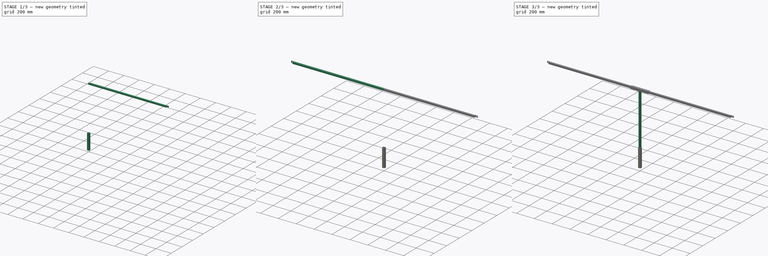
[diagram: build sequence overview — one tinted view per stage of 3, left to right]
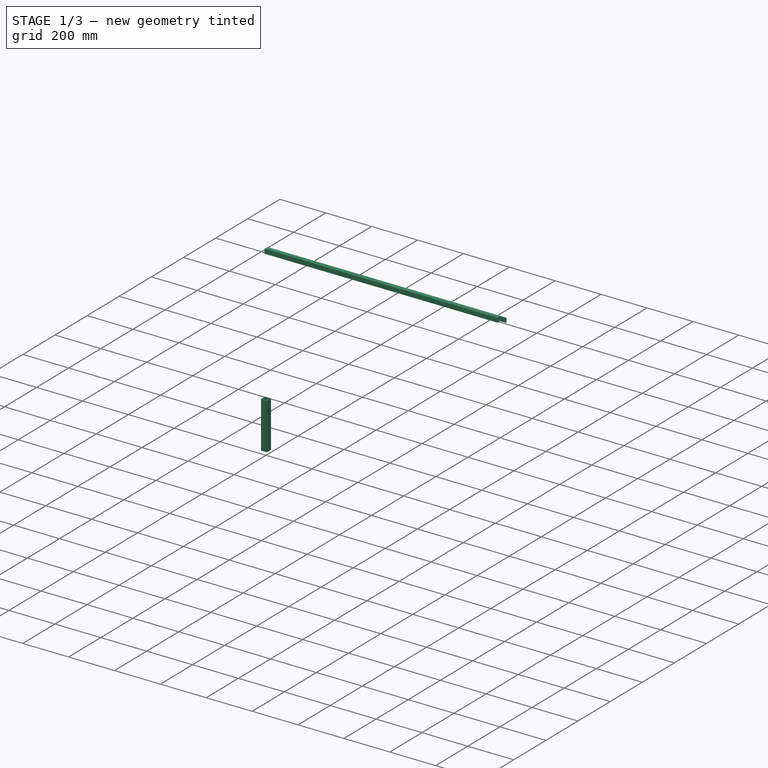
[diagram: stage 1 of 3 — iso view after this stage's code; geometry added in this stage tinted green]
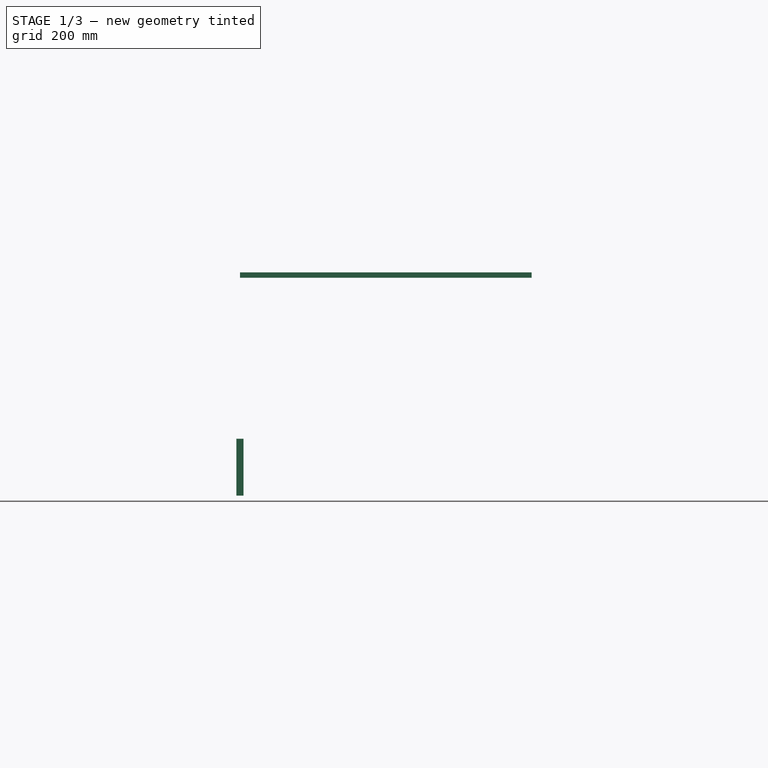
[diagram: stage 1 of 3 — front view after this stage's code; geometry added in this stage tinted green]
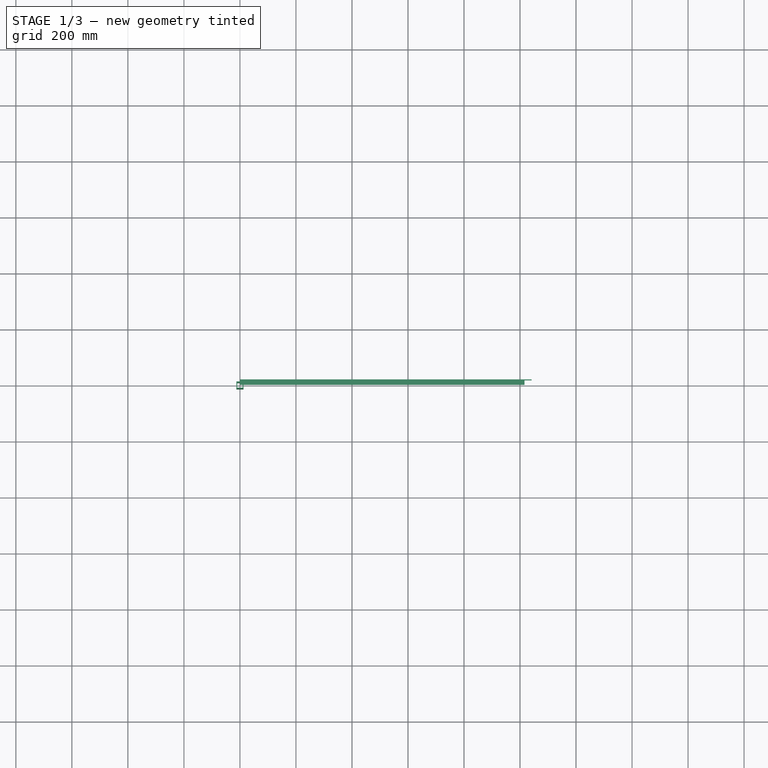
[diagram: stage 1 of 3 — top view after this stage's code; geometry added in this stage tinted green]
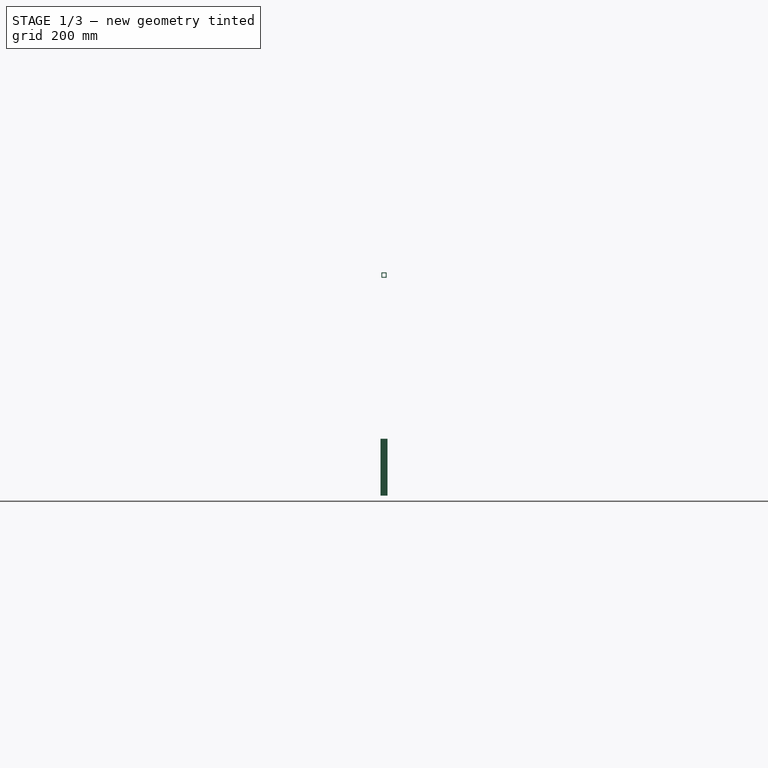
[diagram: stage 1 of 3 — right view after this stage's code; geometry added in this stage tinted green]
FCSTD DOCUMENT  (FreeCAD 0.19R21120 (Git))
Label: Brace
License: All rights reserved
LicenseURL: http://en.wikipedia.org/wiki/All_rights_reserved
objects: Sketcher::SketchObject×8, PartDesign::Pad×4, PartDesign::Pocket×3, PartDesign::Body×3, App::Part×2, PartDesign::Mirrored×1, PartDesign::CoordinateSystem×1
note: 27 computed .brp shape members not serialized (recipe doc carries the construction recipe); baked Part::Feature solids carry a one-line shape summary decoded from their .brp

FEATURE [Sketcher::SketchObject] Sketch
  MapMode = 5
  Placement = pos=(0,0,0) rot=(0.57735,0.57735,0.57735;2.0944rad)
  Support = -> [YZ_Plane]
  sketch-geometry (8):
    g0: LineSegment StartX=-6.35 StartY=692.15 StartZ=0 EndX=6.35 EndY=692.15 EndZ=0
    g1: LineSegment StartX=6.35 StartY=692.15 StartZ=0 EndX=6.35 EndY=679.45 EndZ=0
    g2: LineSegment StartX=6.35 StartY=679.45 StartZ=0 EndX=-6.35 EndY=679.45 EndZ=0
    g3: LineSegment StartX=-6.35 StartY=679.45 StartZ=0 EndX=-6.35 EndY=692.15 EndZ=0
    g4: LineSegment StartX=-9.525 StartY=695.325 StartZ=0 EndX=9.525 EndY=695.325 EndZ=0
    g5: LineSegment StartX=9.525 StartY=695.325 StartZ=0 EndX=9.525 EndY=676.275 EndZ=0
    g6: LineSegment StartX=9.525 StartY=676.275 StartZ=0 EndX=-9.525 EndY=676.275 EndZ=0
    g7: LineSegment StartX=-9.525 StartY=676.275 StartZ=0 EndX=-9.525 EndY=695.325 EndZ=0
  constraints (23):
    c: Coincident(g0,g1)
    c: Coincident(g1,g2)
    c: Coincident(g2,g3)
    c: Coincident(g3,g0)
    c: Horizontal(g0)
    c: Horizontal(g2)
    c: Vertical(g1)
    c: Vertical(g3)
    c: Coincident(g4,g5)
    c: Coincident(g5,g6)
    c: Coincident(g6,g7)
    c: Coincident(g7,g4)
    c: Horizontal(g6)
    c: Vertical(g5)
    c: Vertical(g7)
    c: Symmetric(g4,g4,g-2)
    c: Equal(g4,g7)
    c: DistanceX(g2,g6) = -3.175
    c: DistanceY(g2,g6) = -3.175
    c: Equal(g3,g2)
    c: DistanceX(g0,g4) = 3.175
    c: DistanceX(g6,g6) = 19.05
    c: DistanceY(g5) = 676.275
FEATURE [PartDesign::Pad] Pad
  Length = 1041.4
  Length2 = 98.425
  Placement = pos=(0,0,0) rot=(0.57735,0.57735,0.57735;2.0944rad)
  Profile = -> Sketch
  Type = 0
FEATURE [Sketcher::SketchObject] Sketch001
  ExternalGeometry = -> [Pad]
  MapMode = 5
  Placement = pos=(-2.702e-13,3.86e-13,695.325) rot=(0,0,-1;1.5708rad)
  Support = -> [Pad]
  sketch-geometry (4):
    g0: LineSegment StartX=-6.35 StartY=1041.4 StartZ=0 EndX=9.525 EndY=1041.4 EndZ=0
    g1: LineSegment StartX=9.525 StartY=1041.4 StartZ=0 EndX=9.525 EndY=1016 EndZ=0
    g2: LineSegment StartX=9.525 StartY=1016 StartZ=0 EndX=-6.35 EndY=1016 EndZ=0
    g3: LineSegment StartX=-6.35 StartY=1016 StartZ=0 EndX=-6.35 EndY=1041.4 EndZ=0
  constraints (11):
    c: Coincident(g0,g1)
    c: Coincident(g1,g2)
    c: Coincident(g2,g3)
    c: Coincident(g3,g0)
    c: Horizontal(g0)
    c: Horizontal(g2)
    c: Vertical(g1)
    c: Vertical(g3)
    c: DistanceX(g-3,g0) = 3.175
    c: DistanceY(g3,g3) = 25.4
    c: Coincident(g0,g-3)
FEATURE [PartDesign::Pocket] Pocket
  BaseFeature = -> Pad
  Length = 6.35
  Length2 = 98.425
  Placement = pos=(0,0,0) rot=(0.57735,0.57735,0.57735;2.0944rad)
  Profile = -> Sketch001
  Type = 1
FEATURE [PartDesign::Body] Body001  label="Carriage"
  Group = -> [Sketch003,Pad001,Sketch004,Pad002,Sketch005,Pocket002]
  Origin = -> Origin001
  Tip = -> Pocket002
FEATURE [PartDesign::CoordinateSystem] Bolt1
  AttacherType = Attacher::AttachEngine3D
  MapMode = 11
  Placement = pos=(-1028.7,6.35,685.8) rot=(0,0.707107,0.707107;3.14159rad)
  Support = -> [Mirrored]
FEATURE [App::Part] Part  label="Frame"
  Group = -> [Body,Body001,Bolt1]
  Origin = -> Origin002
FEATURE [Sketcher::SketchObject] Sketch006
  MapMode = 5
  Support = -> [XY_Plane004]
  sketch-geometry (8):
    g0: LineSegment StartX=-12.7 StartY=12.7 StartZ=0 EndX=12.7 EndY=12.7 EndZ=0
    g1: LineSegment StartX=12.7 StartY=12.7 StartZ=0 EndX=12.7 EndY=-12.7 EndZ=0
    g2: LineSegment StartX=12.7 StartY=-12.7 StartZ=0 EndX=-12.7 EndY=-12.7 EndZ=0
    g3: LineSegment StartX=-12.7 StartY=-12.7 StartZ=0 EndX=-12.7 EndY=12.7 EndZ=0
    g4: LineSegment StartX=-9.41787 StartY=9.41787 StartZ=0 EndX=9.41787 EndY=9.41787 EndZ=0
    g5: LineSegment StartX=9.41787 StartY=9.41787 StartZ=0 EndX=9.41787 EndY=-9.41787 EndZ=0
    g6: LineSegment StartX=9.41787 StartY=-9.41787 StartZ=0 EndX=-9.41787 EndY=-9.41787 EndZ=0
    g7: LineSegment StartX=-9.41787 StartY=-9.41787 StartZ=0 EndX=-9.41787 EndY=9.41787 EndZ=0
  constraints (22):
    c: Coincident(g0,g1)
    c: Coincident(g1,g2)
    c: Coincident(g2,g3)
    c: Coincident(g3,g0)
    c: Horizontal(g0)
    c: Horizontal(g2)
    c: Vertical(g1)
    c: Vertical(g3)
    c: Coincident(g4,g5)
    c: Coincident(g5,g6)
    c: Coincident(g6,g7)
    c: Coincident(g7,g4)
    c: Horizontal(g4)
    c: Horizontal(g6)
    c: Vertical(g5)
    c: Vertical(g7)
    c: Symmetric(g4,g6,g-1)
    c: Symmetric(g0,g2,g-1)
    c: Equal(g0,g3)
    c: Equal(g4,g7)
    c: DistanceX(g6,g2) = -3.28213
    c: DistanceX(g0,g0) = 25.4
FEATURE [PartDesign::Pad] Pad003
  Length = 203.2
  Length2 = 98.425
  Midplane = true
  Profile = -> Sketch006
  Type = 0
FEATURE [Sketcher::SketchObject] Sketch007
  MapMode = 5
  Placement = pos=(0,0,0) rot=(0.57735,0.57735,0.57735;2.0944rad)
  Support = -> [YZ_Plane004]
  sketch-geometry (5):
    g0: LineSegment StartX=-38.1 StartY=12.7 StartZ=0 EndX=-12.7 EndY=12.7 EndZ=0
    g1: LineSegment StartX=-12.7 StartY=12.7 StartZ=0 EndX=-12.7 EndY=-12.7 EndZ=0
    g2: LineSegment StartX=-12.7 StartY=-12.7 StartZ=0 EndX=-38.1 EndY=-12.7 EndZ=0
    g3: LineSegment StartX=-38.1 StartY=-12.7 StartZ=0 EndX=-38.1 EndY=12.7 EndZ=0
    g4: Circle CenterX=-25.4 CenterY=0 CenterZ=0 NormalX=0 NormalY=0 NormalZ=1 AngleXU=0 Radius=5.74957
  constraints (13):
    c: Coincident(g0,g1)
    c: Coincident(g1,g2)
    c: Coincident(g2,g3)
    c: Coincident(g3,g0)
    c: Horizontal(g0)
    c: Horizontal(g2)
    c: Vertical(g1)
    c: Vertical(g3)
    c: PointOnObject(g4,g-1)
    c: DistanceX(g0,g0) = 25.4
    c: Symmetric(g2,g0,g4)
    c: Equal(g0,g3)
    c: DistanceX(g0,g-1) = 12.7
FEATURE [PartDesign::Body] Body002
  Group = -> [Sketch006,Pad003,Sketch007]
  Origin = -> Origin004
  Tip = -> Pad003
FEATURE [App::Part] Part001
  Group = -> [Body002]
  Origin = -> Origin003
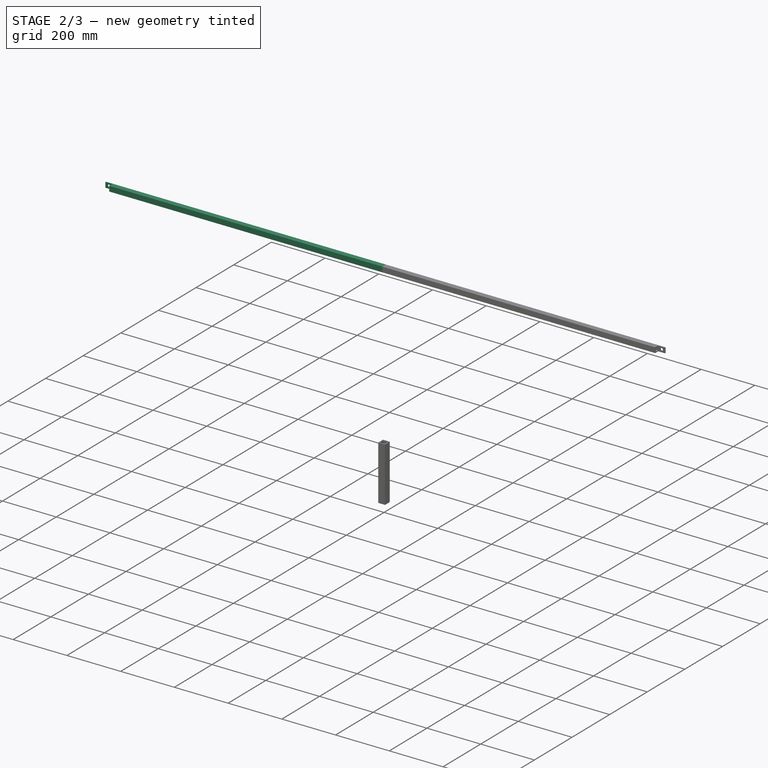
[diagram: stage 2 of 3 — iso view after this stage's code; geometry added in this stage tinted green]
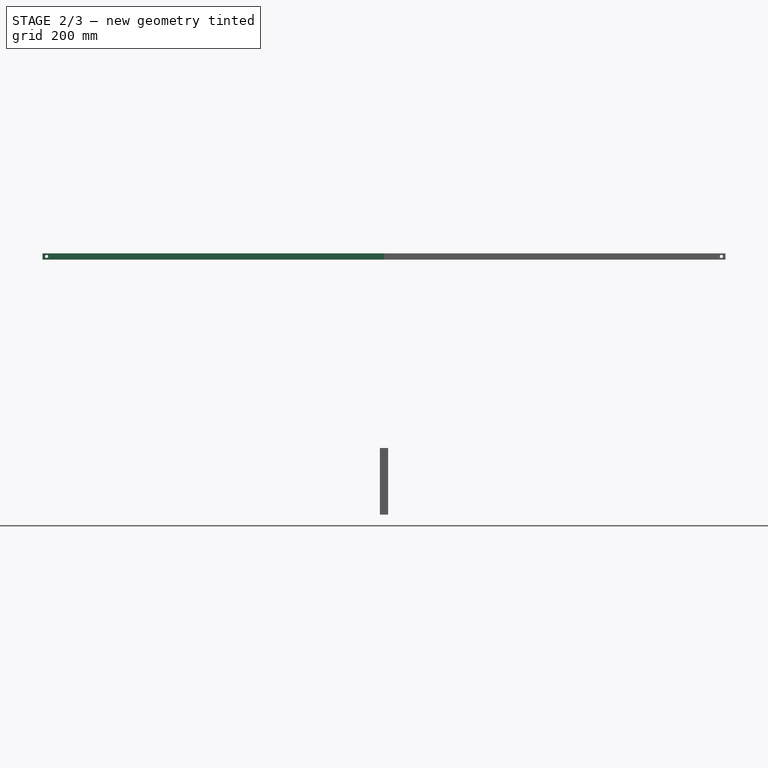
[diagram: stage 2 of 3 — front view after this stage's code; geometry added in this stage tinted green]
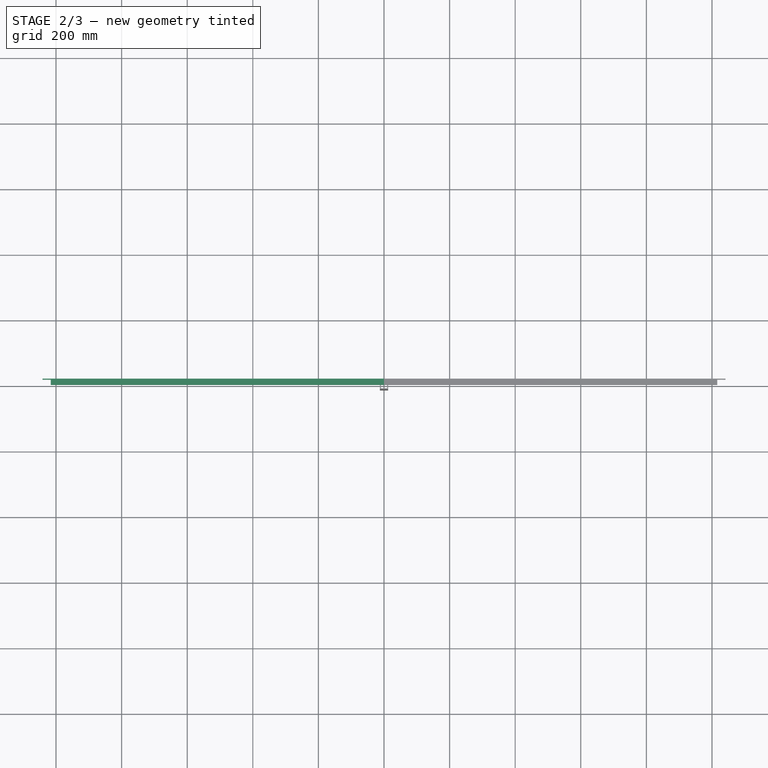
[diagram: stage 2 of 3 — top view after this stage's code; geometry added in this stage tinted green]
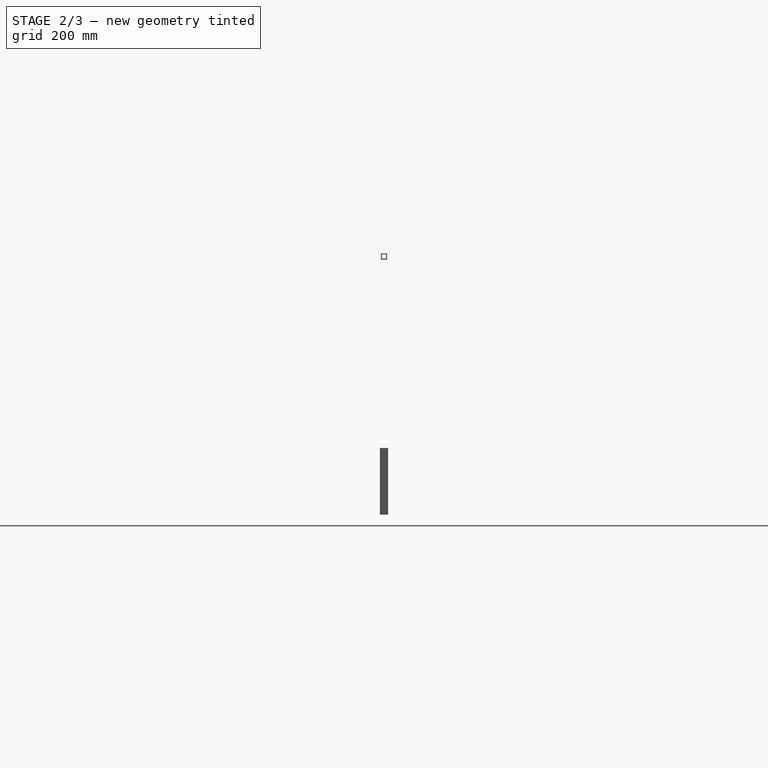
[diagram: stage 2 of 3 — right view after this stage's code; geometry added in this stage tinted green]
FEATURE [Sketcher::SketchObject] Sketch002
  ExternalGeometry = -> [Pocket]
  MapMode = 5
  Placement = pos=(2.8e-15,6.35,-4.2e-15) rot=(0.57735,0.57735,-0.57735;2.0944rad)
  Support = -> [Pocket]
  sketch-geometry (1):
    g0: Circle CenterX=-685.8 CenterY=1028.7 CenterZ=0 NormalX=0 NormalY=0 NormalZ=1 AngleXU=0 Radius=4.7625
  constraints (3):
    c: DistanceX(g0,g-3) = -9.525
    c: Diameter(g0) = 9.525
    c: DistanceY(g0) = 1028.7
FEATURE [PartDesign::Pocket] Pocket001
  BaseFeature = -> Pocket
  Length = 6.35
  Length2 = 98.425
  Placement = pos=(0,0,0) rot=(0.57735,0.57735,0.57735;2.0944rad)
  Profile = -> Sketch002
  Type = 1
FEATURE [PartDesign::Mirrored] Mirrored
  BaseFeature = -> Pocket001
  MirrorPlane = -> Sketch002 [H_Axis]
  Originals = -> [Pad,Pocket,Pocket001]
  Placement = pos=(0,0,0) rot=(0.57735,0.57735,0.57735;2.0944rad)
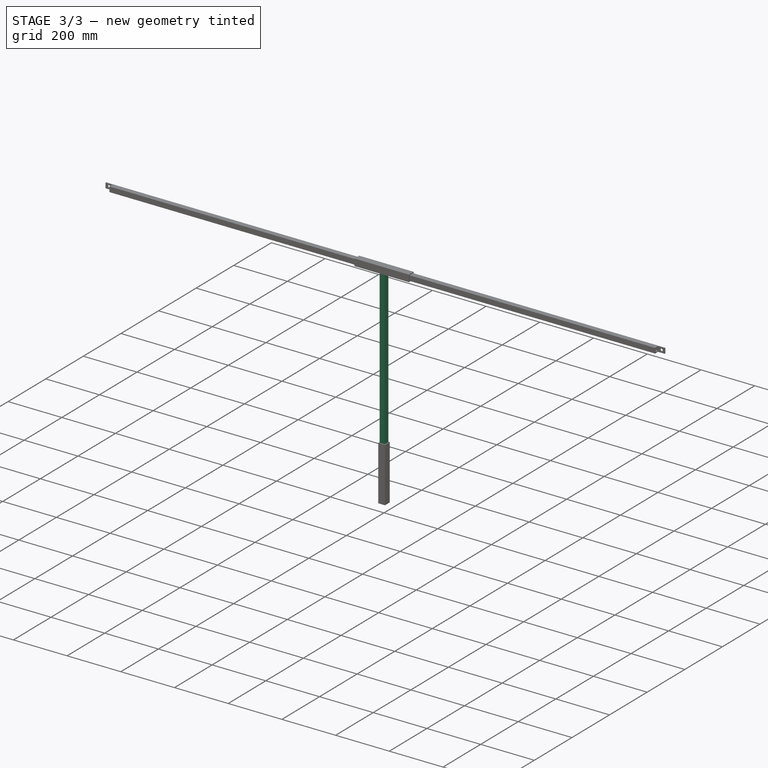
[diagram: stage 3 of 3 — iso view after this stage's code; geometry added in this stage tinted green]
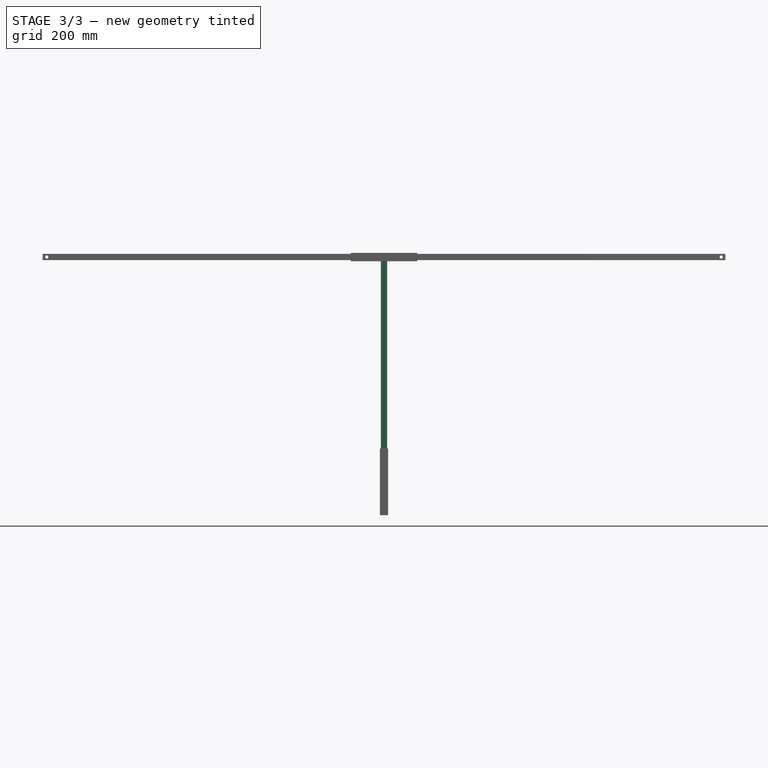
[diagram: stage 3 of 3 — front view after this stage's code; geometry added in this stage tinted green]
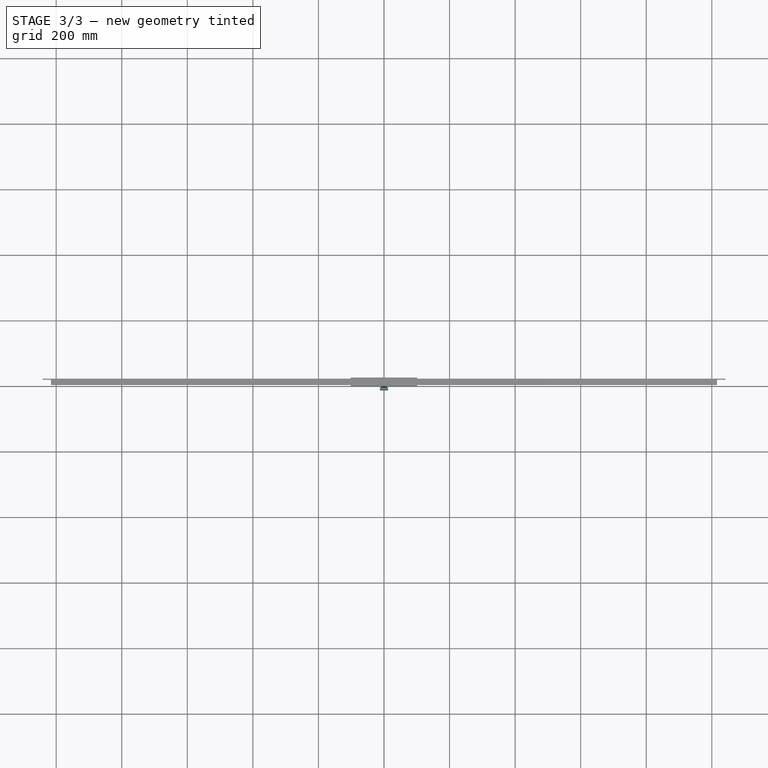
[diagram: stage 3 of 3 — top view after this stage's code; geometry added in this stage tinted green]
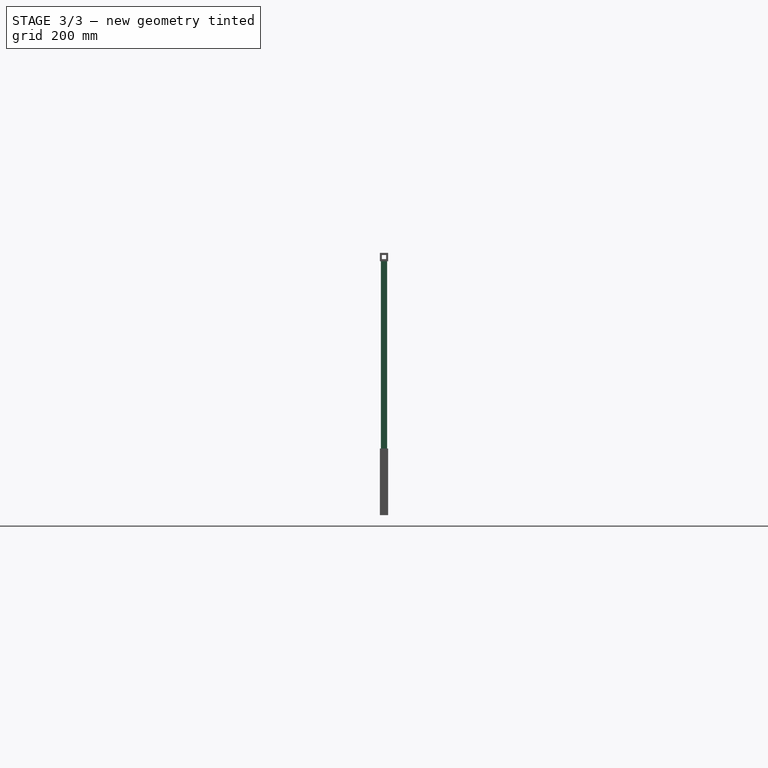
[diagram: stage 3 of 3 — right view after this stage's code; geometry added in this stage tinted green]
FEATURE [PartDesign::Body] Body  label="CrossBeam"
  Group = -> [Sketch,Pad,Sketch001,Pocket,Sketch002,Pocket001,Mirrored]
  Origin = -> Origin
  Tip = -> Mirrored
FEATURE [Sketcher::SketchObject] Sketch003
  MapMode = 5
  Placement = pos=(0,0,0) rot=(0.57735,0.57735,0.57735;2.0944rad)
  Support = -> [YZ_Plane001]
  sketch-geometry (9):
    g0: LineSegment StartX=-9.525 StartY=695.325 StartZ=0 EndX=9.525 EndY=695.325 EndZ=0
    g1: LineSegment StartX=9.525 StartY=695.325 StartZ=0 EndX=9.525 EndY=676.275 EndZ=0
    g2: LineSegment StartX=9.525 StartY=676.275 StartZ=0 EndX=-9.525 EndY=676.275 EndZ=0
    g3: LineSegment StartX=-9.525 StartY=676.275 StartZ=0 EndX=-9.525 EndY=695.325 EndZ=0
    g4: LineSegment StartX=-12.7 StartY=698.5 StartZ=0 EndX=12.7 EndY=698.5 EndZ=0
    g5: LineSegment StartX=12.7 StartY=698.5 StartZ=0 EndX=12.7 EndY=673.1 EndZ=0
    g6: LineSegment StartX=12.7 StartY=673.1 StartZ=0 EndX=-12.7 EndY=673.1 EndZ=0
    g7: LineSegment StartX=-12.7 StartY=673.1 StartZ=0 EndX=-12.7 EndY=698.5 EndZ=0
    g8: LineSegment [constr] StartX=-9.525 StartY=676.275 StartZ=0 EndX=-12.7 EndY=673.1 EndZ=0
  constraints (25):
    c: Coincident(g0,g1)
    c: Coincident(g1,g2)
    c: Coincident(g2,g3)
    c: Coincident(g3,g0)
    c: Horizontal(g0)
    c: Horizontal(g2)
    c: Vertical(g1)
    c: Vertical(g3)
    c: Coincident(g4,g5)
    c: Coincident(g5,g6)
    c: Coincident(g6,g7)
    c: Coincident(g7,g4)
    c: Horizontal(g6)
    c: Vertical(g5)
    c: Vertical(g7)
    c: Equal(g4,g7)
    c: Symmetric(g4,g4,g-2)
    c: DistanceX(g4,g4) = 25.4
    c: DistanceY(g1) = 676.275
    c: Equal(g0,g3)
    c: Coincident(g8,g2)
    c: Coincident(g8,g6)
    c: Angle(g6,g8) = 0.785398
    c: DistanceX(g6,g2) = 3.175
    c: DistanceY(g0,g4) = 3.175
FEATURE [PartDesign::Pad] Pad001
  Length = 203.2
  Length2 = 98.425
  Midplane = true
  Placement = pos=(0,0,0) rot=(0.57735,0.57735,0.57735;2.0944rad)
  Profile = -> Sketch003
  Type = 0
FEATURE [Sketcher::SketchObject] Sketch004
  ExternalGeometry = -> [Pad001]
  MapMode = 5
  Placement = pos=(-2.616e-13,3.736e-13,673.1) rot=(0.707107,0.707107,0;3.14159rad)
  Support = -> [Pad001]
  sketch-geometry (8):
    g0: LineSegment StartX=-9.525 StartY=9.525 StartZ=0 EndX=9.525 EndY=9.525 EndZ=0
    g1: LineSegment StartX=9.525 StartY=9.525 StartZ=0 EndX=9.525 EndY=-9.525 EndZ=0
    g2: LineSegment StartX=9.525 StartY=-9.525 StartZ=0 EndX=-9.525 EndY=-9.525 EndZ=0
    g3: LineSegment StartX=-9.525 StartY=-9.525 StartZ=0 EndX=-9.525 EndY=9.525 EndZ=0
    g4: LineSegment StartX=-6.35 StartY=6.35 StartZ=0 EndX=6.35 EndY=6.35 EndZ=0
    g5: LineSegment StartX=6.35 StartY=6.35 StartZ=0 EndX=6.35 EndY=-6.35 EndZ=0
    g6: LineSegment StartX=6.35 StartY=-6.35 StartZ=0 EndX=-6.35 EndY=-6.35 EndZ=0
    g7: LineSegment StartX=-6.35 StartY=-6.35 StartZ=0 EndX=-6.35 EndY=6.35 EndZ=0
  constraints (22):
    c: Coincident(g0,g1)
    c: Coincident(g1,g2)
    c: Coincident(g2,g3)
    c: Coincident(g3,g0)
    c: Horizontal(g0)
    c: Horizontal(g2)
    c: Vertical(g1)
    c: Vertical(g3)
    c: Coincident(g4,g5)
    c: Coincident(g5,g6)
    c: Coincident(g6,g7)
    c: Coincident(g7,g4)
    c: Horizontal(g4)
    c: Horizontal(g6)
    c: Vertical(g5)
    c: Vertical(g7)
    c: Symmetric(g0,g1,g-1)
    c: Equal(g0,g3)
    c: DistanceX(g0,g0) = 19.05
    c: Equal(g4,g5)
    c: Symmetric(g4,g5,g-1)
    c: DistanceX(g2,g6) = 3.175
FEATURE [PartDesign::Pad] Pad002
  BaseFeature = -> Pad001
  Length = 676.275
  Length2 = 98.425
  Placement = pos=(0,0,0) rot=(0.57735,0.57735,0.57735;2.0944rad)
  Profile = -> Sketch004
  Type = 0
FEATURE [Sketcher::SketchObject] Sketch005
  ExternalGeometry = -> [Pad002]
  MapMode = 5
  Placement = pos=(1.1e-15,-4e-16,-3.175) rot=(0.707107,0.707107,0;3.14159rad)
  Support = -> [Pad002]
  sketch-geometry (4):
    g0: LineSegment StartX=-2.38125 StartY=9.525 StartZ=0 EndX=2.38125 EndY=9.525 EndZ=0
    g1: LineSegment StartX=2.38125 StartY=9.525 StartZ=0 EndX=2.38125 EndY=-9.525 EndZ=0
    g2: LineSegment StartX=2.38125 StartY=-9.525 StartZ=0 EndX=-2.38125 EndY=-9.525 EndZ=0
    g3: LineSegment StartX=-2.38125 StartY=-9.525 StartZ=0 EndX=-2.38125 EndY=9.525 EndZ=0
  constraints (11):
    c: Coincident(g0,g1)
    c: Coincident(g1,g2)
    c: Coincident(g2,g3)
    c: Coincident(g3,g0)
    c: Horizontal(g0)
    c: Horizontal(g2)
    c: Vertical(g1)
    c: Vertical(g3)
    c: Symmetric(g0,g1,g-1)
    c: DistanceX(g0,g0) = 4.7625
    c: PointOnObject(g0,g-3)
FEATURE [PartDesign::Pocket] Pocket002
  BaseFeature = -> Pad002
  Length = 15.875
  Length2 = 98.425
  Placement = pos=(0,0,0) rot=(0.57735,0.57735,0.57735;2.0944rad)
  Profile = -> Sketch005
  Type = 0
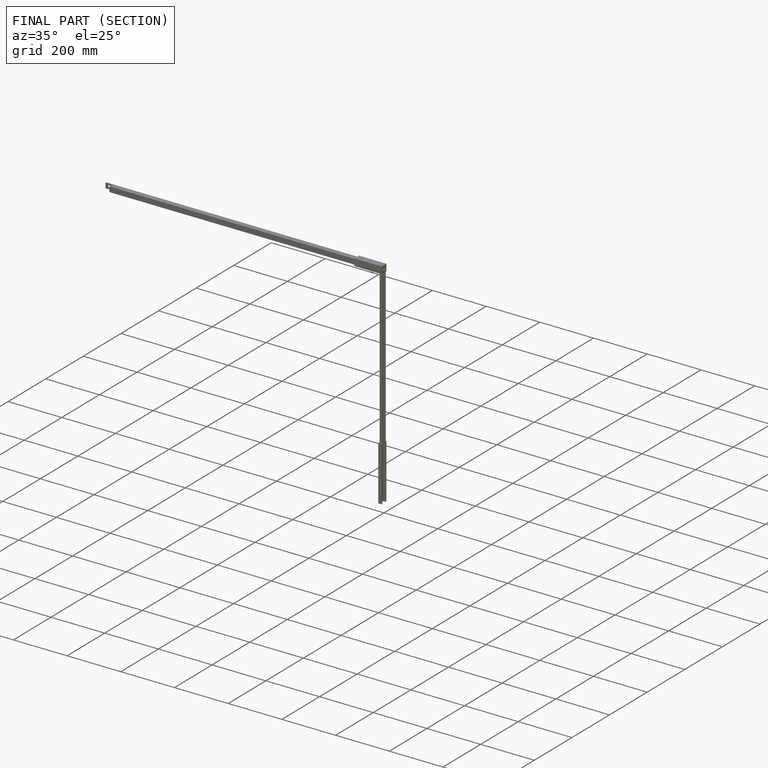
[diagram: finished part — half-section view (interior)]
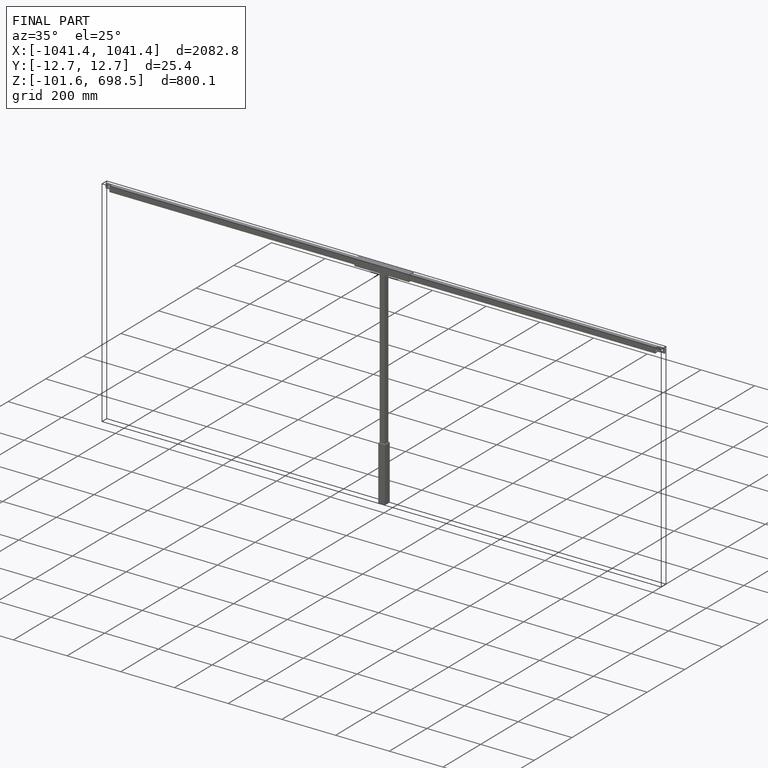
[diagram: finished part — iso view with bounding-box wireframe]
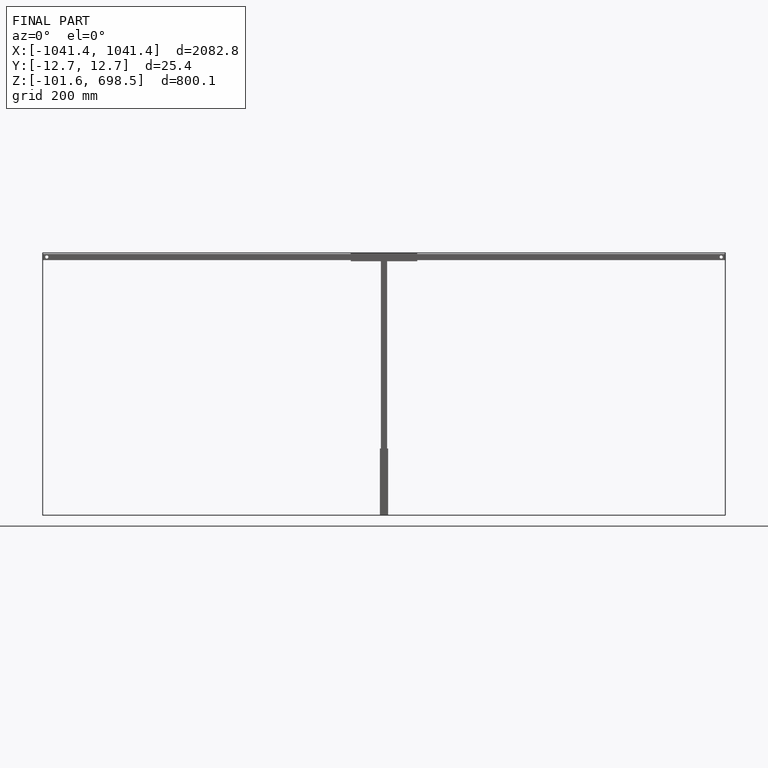
[diagram: finished part — front view with bounding-box wireframe]
